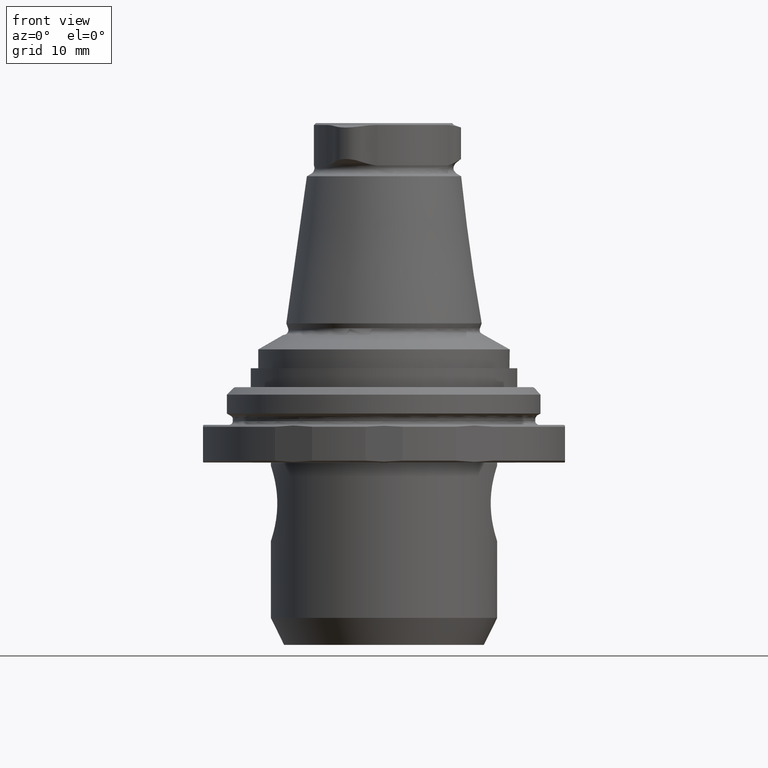
[diagram: clean part render]
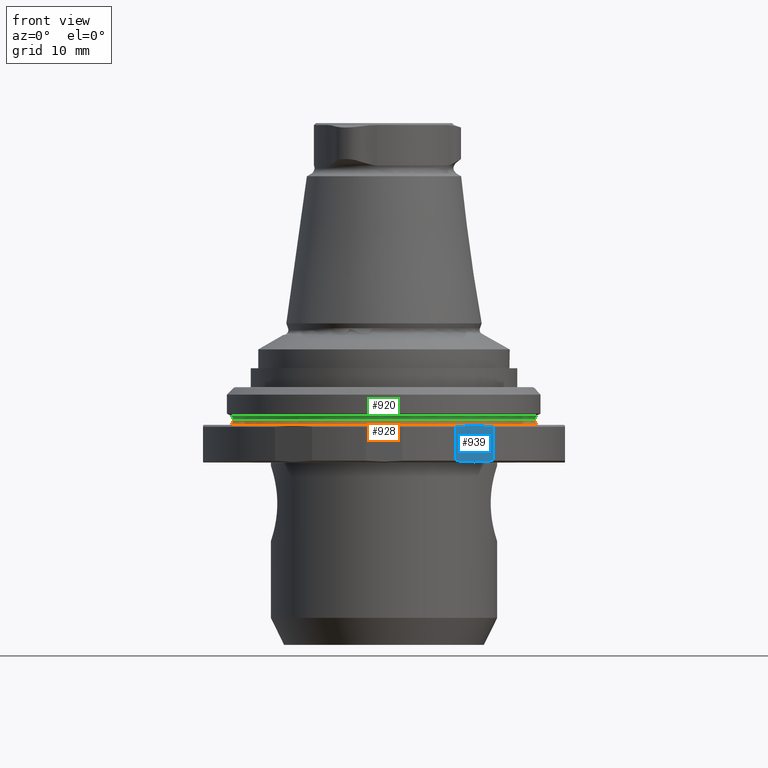
[diagram: same view with three faces highlighted in distinct colors, each labeled with its STEP entity id]
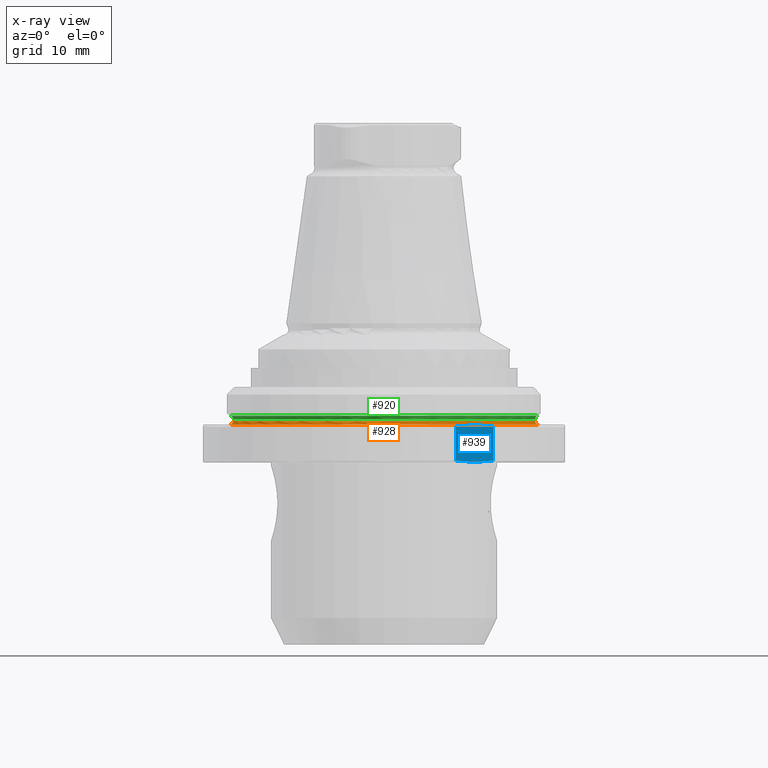
[diagram: x-ray of the same camera — body ghosted, the three highlighted faces saturated]
A machine part, front view with three faces highlighted in distinct colors.
The next image is the same camera in x-ray (body ghosted, the three faces saturated) — at least one of them is partly hidden behind the body in this view.
Their STEP definitions:

[orange] entity #928 — the highlighted toroidal blend (fillet) surface has major radius 24.65 mm and minor (blend) radius 0.6 mm.
#113=TOROIDAL_SURFACE('',#1022,24.65,0.6);
#120=CIRCLE('',#1005,24.05);
#129=CIRCLE('',#1023,24.65);
#197=ORIENTED_EDGE('',*,*,#442,.F.);
#198=ORIENTED_EDGE('',*,*,#433,.T.);
#433=EDGE_CURVE('',#560,#560,#120,.T.);
#442=EDGE_CURVE('',#569,#569,#129,.T.);
#560=VERTEX_POINT('',#1456);
#569=VERTEX_POINT('',#1483);
#713=EDGE_LOOP('',(#197));
#714=EDGE_LOOP('',(#198));
#813=FACE_BOUND('',#713,.T.);
#814=FACE_BOUND('',#714,.T.);
#928=ADVANCED_FACE('',(#813,#814),#113,.F.);
#1005=AXIS2_PLACEMENT_3D('',#1455,#1139,#1140);
#1022=AXIS2_PLACEMENT_3D('',#1481,#1173,#1174);
#1023=AXIS2_PLACEMENT_3D('',#1482,#1175,#1176);
#1139=DIRECTION('',(-5.20001084984554E-33,-4.76419527885826E-18,-1.));
#1140=DIRECTION('',(-1.,0.,0.));
#1173=DIRECTION('',(-5.20001084984554E-33,-4.76419527885826E-18,-1.));
#1174=DIRECTION('',(-1.,0.,0.));
#1175=DIRECTION('',(-5.20001084984554E-33,-4.76419527885826E-18,-1.));
#1176=DIRECTION('',(-1.,0.,0.));
#1455=CARTESIAN_POINT('',(3.12000650990732E-33,2.85851716731495E-18,-0.395929214352116));
#1456=CARTESIAN_POINT('',(-24.05,2.85851716731495E-18,-0.395929214352116));
#1481=CARTESIAN_POINT('',(3.12000650990732E-33,2.85851716731495E-18,-0.395929214352116));
#1482=CARTESIAN_POINT('',(0.,0.,-0.995929214352116));
#1483=CARTESIAN_POINT('',(-24.65,0.,-0.995929214352116));

[blue] entity #939 — the highlighted planar face has unit normal (-0.5, 0.866, -0).
#28=LINE('',#1589,#56);
#29=LINE('',#1596,#57);
#56=VECTOR('',#1231,1000.);
#57=VECTOR('',#1234,1000.);
#83=PLANE('',#1047);
#250=ORIENTED_EDGE('',*,*,#476,.F.);
#251=ORIENTED_EDGE('',*,*,#477,.F.);
#252=ORIENTED_EDGE('',*,*,#478,.F.);
#253=ORIENTED_EDGE('',*,*,#455,.F.);
#455=EDGE_CURVE('',#582,#583,#654,.F.);
#476=EDGE_CURVE('',#595,#582,#28,.F.);
#477=EDGE_CURVE('',#596,#595,#661,.T.);
#478=EDGE_CURVE('',#583,#596,#29,.T.);
#582=VERTEX_POINT('',#1525);
#583=VERTEX_POINT('',#1530);
#595=VERTEX_POINT('',#1588);
#596=VERTEX_POINT('',#1595);
#654=B_SPLINE_CURVE_WITH_KNOTS('',3,(#1526,#1527,#1528,#1529),
 .UNSPECIFIED.,.F.,.F.,(4,4),(0.0123361877565685,0.019109524321464),
 .UNSPECIFIED.);
#661=B_SPLINE_CURVE_WITH_KNOTS('',3,(#1591,#1592,#1593,#1594),
 .UNSPECIFIED.,.F.,.F.,(4,4),(0.0123361877565685,0.019109524321464),
 .UNSPECIFIED.);
#727=EDGE_LOOP('',(#250,#251,#252,#253));
#827=FACE_BOUND('',#727,.T.);
#939=ADVANCED_FACE('',(#827),#83,.F.);
#1047=AXIS2_PLACEMENT_3D('',#1590,#1232,#1233);
#1231=DIRECTION('',(-5.20001084984554E-33,-4.76419527885825E-18,-1.));
#1232=DIRECTION('',(-0.500000000000001,0.866025403784438,-4.12591414008113E-18));
#1233=DIRECTION('',(-5.20001084984554E-33,-4.76419527885825E-18,-1.));
#1234=DIRECTION('',(-5.20001084984554E-33,-4.76419527885825E-18,-1.));
#1525=CARTESIAN_POINT('',(11.4555136271329,-26.6415316289918,-1.29592921435212));
#1526=CARTESIAN_POINT('',(17.3444863728671,-23.2415316289918,-1.29592921435212));
#1527=CARTESIAN_POINT('',(15.3769568456743,-24.3774853311551,-1.02956765660349));
#1528=CARTESIAN_POINT('',(13.4139868211869,-25.5108066032041,-1.03079369106396));
#1529=CARTESIAN_POINT('',(11.4555136271329,-26.6415316289918,-1.29592921435211));
#1530=CARTESIAN_POINT('',(17.3444863728671,-23.2415316289918,-1.29592921435212));
#1588=CARTESIAN_POINT('',(11.4555136271329,-26.6415316289918,-6.69592921435211));
#1589=CARTESIAN_POINT('',(11.4555136271329,-26.6415316289918,-0.995929214352115));
#1590=CARTESIAN_POINT('',(14.4,-24.9415316289918,-3.99592921435211));
#1591=CARTESIAN_POINT('',(17.3444863728671,-23.2415316289918,-6.69592921435212));
#1592=CARTESIAN_POINT('',(15.3769568456743,-24.3774853311551,-6.96229077210074));
#1593=CARTESIAN_POINT('',(13.4139868211869,-25.5108066032041,-6.96106473764027));
#1594=CARTESIAN_POINT('',(11.4555136271329,-26.6415316289918,-6.69592921435212));
#1595=CARTESIAN_POINT('',(17.3444863728671,-23.2415316289918,-6.69592921435212));
#1596=CARTESIAN_POINT('',(17.3444863728671,-23.2415316289918,-0.995929214352115));

[green] entity #920 — the highlighted toroidal blend (fillet) surface has major radius 24.65 mm and minor (blend) radius 0.6 mm.
#111=TOROIDAL_SURFACE('',#1007,24.65,0.6);
#121=CIRCLE('',#1006,24.05);
#122=CIRCLE('',#1008,24.35);
#181=ORIENTED_EDGE('',*,*,#434,.F.);
#182=ORIENTED_EDGE('',*,*,#435,.T.);
#434=EDGE_CURVE('',#561,#561,#121,.T.);
#435=EDGE_CURVE('',#562,#562,#122,.T.);
#561=VERTEX_POINT('',#1458);
#562=VERTEX_POINT('',#1461);
#697=EDGE_LOOP('',(#181));
#698=EDGE_LOOP('',(#182));
#797=FACE_BOUND('',#697,.T.);
#798=FACE_BOUND('',#698,.T.);
#920=ADVANCED_FACE('',(#797,#798),#111,.F.);
#1006=AXIS2_PLACEMENT_3D('',#1457,#1141,#1142);
#1007=AXIS2_PLACEMENT_3D('',#1459,#1143,#1144);
#1008=AXIS2_PLACEMENT_3D('',#1460,#1145,#1146);
#1141=DIRECTION('',(-5.20001084984554E-33,-4.76419527885826E-18,-1.));
#1142=DIRECTION('',(-1.,0.,0.));
#1143=DIRECTION('',(-5.20001084984554E-33,-4.76419527885826E-18,-1.));
#1144=DIRECTION('',(-1.,0.,0.));
#1145=DIRECTION('',(-5.20001084984554E-33,-4.76419527885826E-18,-1.));
#1146=DIRECTION('',(-1.,0.,0.));
#1457=CARTESIAN_POINT('',(4.70656665060368E-33,4.3121068905277E-18,-0.0908221315960321));
#1458=CARTESIAN_POINT('',(-24.05,4.3121068905277E-18,-0.0908221315960321));
#1459=CARTESIAN_POINT('',(4.70656665060368E-33,4.3121068905277E-18,-0.090822131596032));
#1460=CARTESIAN_POINT('',(7.40857154815625E-33,6.78765537457639E-18,0.428793110674632));
#1461=CARTESIAN_POINT('',(-24.35,6.78765537457639E-18,0.428793110674632));